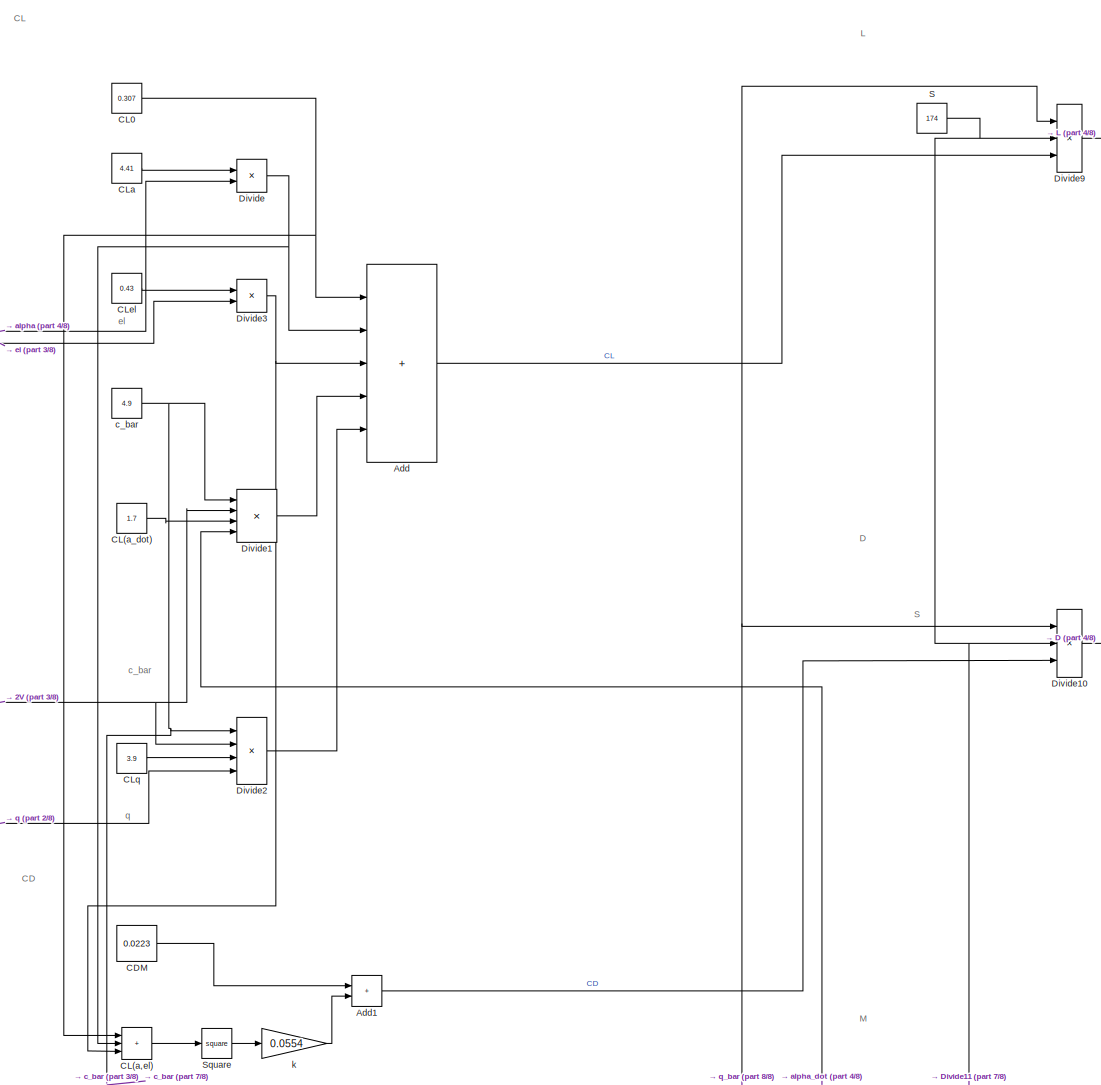
[diagram: root canvas - part 1/8, top left region]
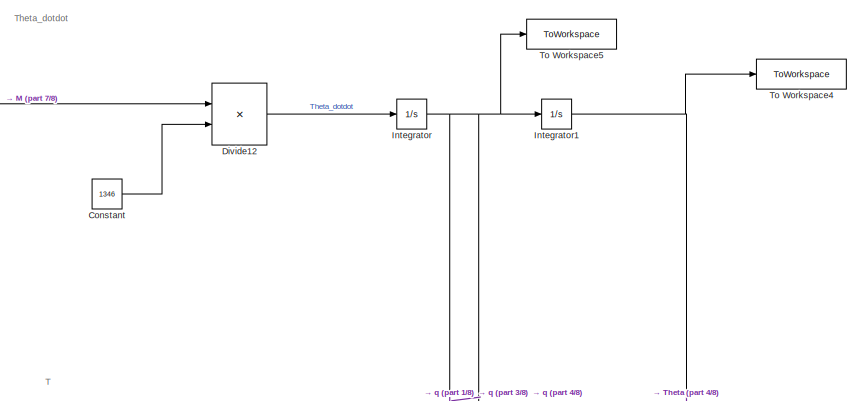
[diagram: root canvas - part 2/8, top right region]
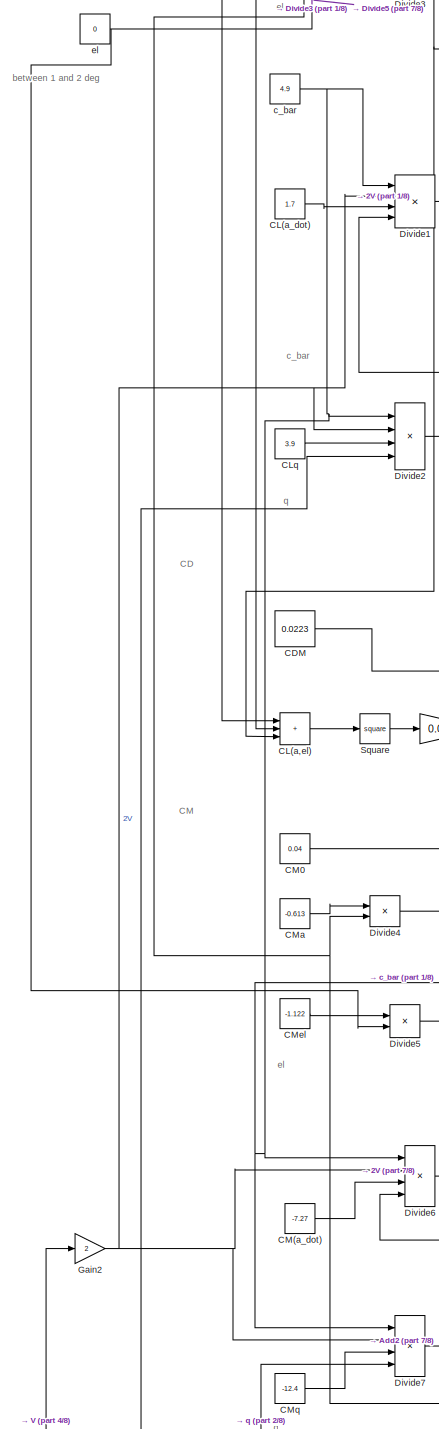
[diagram: root canvas - part 3/8, middle left region]
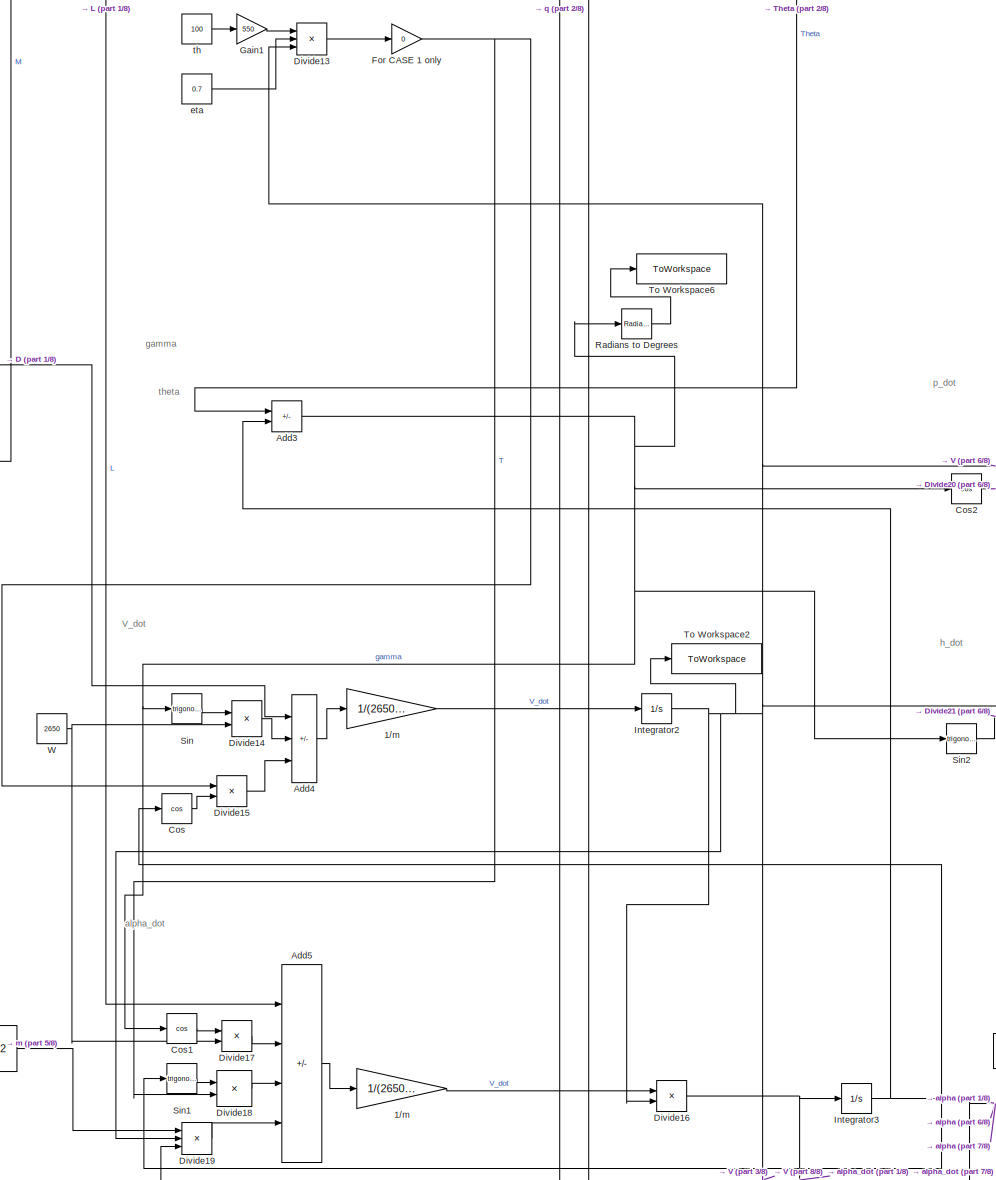
[diagram: root canvas - part 4/8, middle right region]
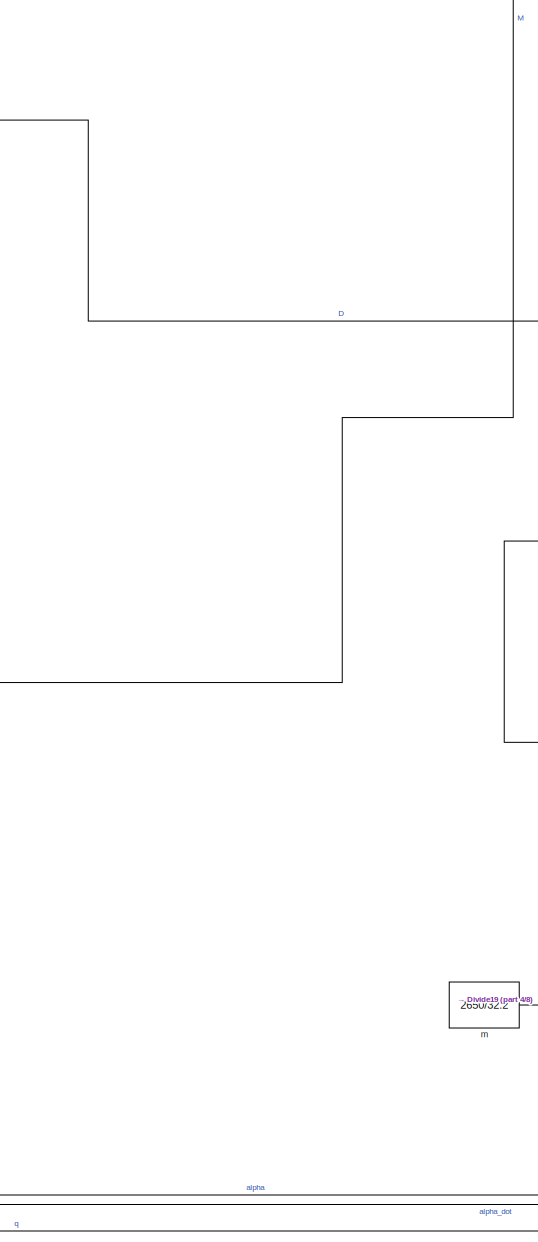
[diagram: root canvas - part 5/8, central region]
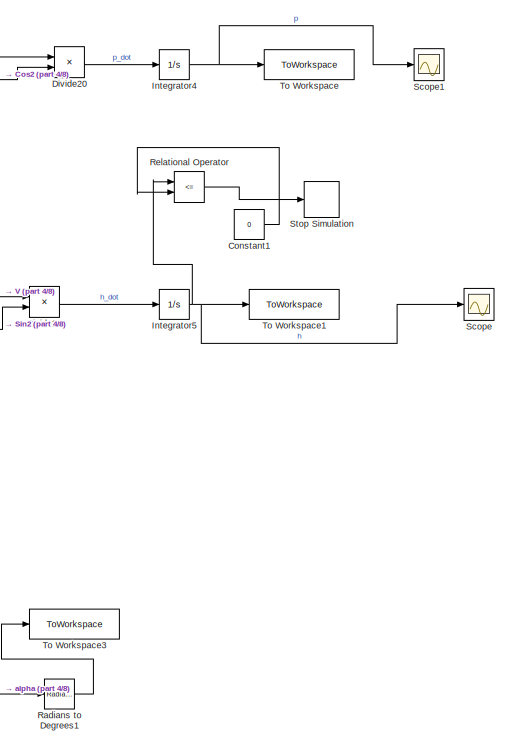
[diagram: root canvas - part 6/8, middle right region]
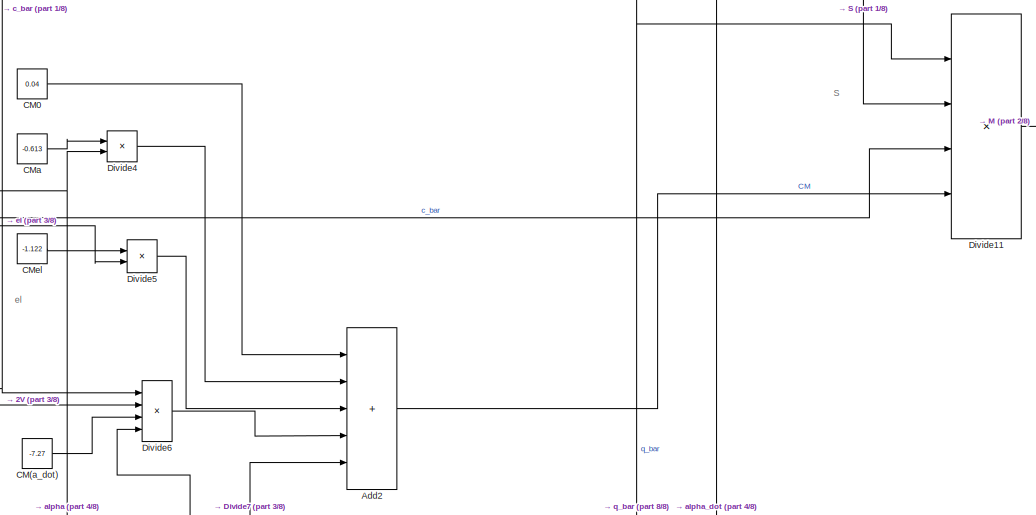
[diagram: root canvas - part 7/8, middle left region]
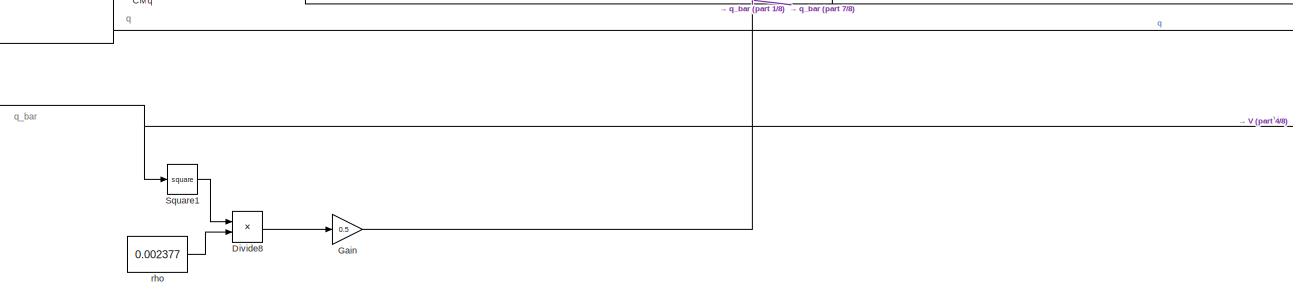
[diagram: root canvas - part 8/8, bottom left region]
MODEL slx_52c1baaa31ce
KIND model
CONFIG AbsTol = auto
CONFIG EnableMultiTasking = off
CONFIG FixedStep = auto
CONFIG MaxStep = auto
CONFIG MinStep = auto
CONFIG RelTol = 1e-3
CONFIG SampleTimeConstraint = Unconstrained
CONFIG Solver = FixedStepAuto
CONFIG SolverName = FixedStepAuto
CONFIG StartTime = 0.0
CONFIG StopTime = 500
BLOCK [Gain] 1//m
  Gain = 1/(2650/32.2)
BLOCK [Gain] 1//m 
  Gain = 1/(2650/32.2)
BLOCK [Sum] Add
  IconShape = rectangular
  Inputs = +++++
  Ports = [5, 1]
BLOCK [Sum] Add1
  IconShape = rectangular
  Ports = [2, 1]
BLOCK [Sum] Add2
  IconShape = rectangular
  Inputs = +++++
  Ports = [5, 1]
BLOCK [Sum] Add3
  IconShape = rectangular
  Inputs = +-
  Ports = [2, 1]
BLOCK [Sum] Add4
  IconShape = rectangular
  Inputs = --+
  Ports = [3, 1]
BLOCK [Sum] Add5
  IconShape = rectangular
  Inputs = -+-+
  Ports = [4, 1]
BLOCK [Constant] CDM
  Value = 0.0223
BLOCK [Sum] CL(a,el)
  IconShape = rectangular
  Inputs = +++
  Ports = [3, 1]
BLOCK [Constant] CL(a_dot)
  Value = 1.7
BLOCK [Constant] CL0
  Value = 0.307
BLOCK [Constant] CLa
  Value = 4.41
BLOCK [Constant] CLel
  Value = 0.43
BLOCK [Constant] CLq
  Value = 3.9
BLOCK [Constant] CM(a_dot)
  Value = -7.27
BLOCK [Constant] CM0
  Value = 0.04
BLOCK [Constant] CMa
  Value = -0.613
BLOCK [Constant] CMel
  Value = -1.122
BLOCK [Constant] CMq
  Value = -12.4
BLOCK [Constant] Constant
  Value = 1346
BLOCK [Constant] Constant1
  Value = 0
BLOCK [Trigonometry] Cos
  Operator = cos
  Ports = [1, 1]
BLOCK [Trigonometry] Cos1
  Operator = cos
  Ports = [1, 1]
BLOCK [Trigonometry] Cos2
  Operator = cos
  Ports = [1, 1]
BLOCK [Product] Divide
  Inputs = **
  Ports = [2, 1]
BLOCK [Product] Divide1
  Inputs = */**
  Ports = [4, 1]
BLOCK [Product] Divide10
  Inputs = ***
  Ports = [3, 1]
BLOCK [Product] Divide11
  Inputs = ****
  Ports = [4, 1]
BLOCK [Product] Divide12
  Inputs = */
  Ports = [2, 1]
BLOCK [Product] Divide13
  Inputs = **/
  Ports = [3, 1]
BLOCK [Product] Divide14
  Inputs = **
  Ports = [2, 1]
BLOCK [Product] Divide15
  Inputs = **
  Ports = [2, 1]
BLOCK [Product] Divide16
  Inputs = */
  Ports = [2, 1]
BLOCK [Product] Divide17
  Inputs = **
  Ports = [2, 1]
BLOCK [Product] Divide18
  Inputs = **
  Ports = [2, 1]
BLOCK [Product] Divide19
  Inputs = ***
  Ports = [3, 1]
BLOCK [Product] Divide2
  Inputs = */**
  Ports = [4, 1]
BLOCK [Product] Divide20
  Inputs = **
  Ports = [2, 1]
BLOCK [Product] Divide21
  Inputs = **
  Ports = [2, 1]
BLOCK [Product] Divide3
  Inputs = **
  Ports = [2, 1]
BLOCK [Product] Divide4
  Inputs = **
  Ports = [2, 1]
BLOCK [Product] Divide5
  Inputs = **
  Ports = [2, 1]
BLOCK [Product] Divide6
  Inputs = */**
  Ports = [4, 1]
BLOCK [Product] Divide7
  Inputs = */**
  Ports = [4, 1]
BLOCK [Product] Divide8
  Inputs = **
  Ports = [2, 1]
BLOCK [Product] Divide9
  Inputs = ***
  Ports = [3, 1]
BLOCK [Gain] For CASE 1 only
  Gain = 0
BLOCK [Gain] Gain
  Gain = 0.5
BLOCK [Gain] Gain1
  Gain = 550
BLOCK [Gain] Gain2
  Gain = 2
BLOCK [Integrator] Integrator
  Ports = [1, 1]
BLOCK [Integrator] Integrator1
  Ports = [1, 1]
BLOCK [Integrator] Integrator2
  InitialCondition = 100*5280/3600
  Ports = [1, 1]
BLOCK [Integrator] Integrator3
  Ports = [1, 1]
BLOCK [Integrator] Integrator4
  Ports = [1, 1]
BLOCK [Integrator] Integrator5
  InitialCondition = 2000
  Ports = [1, 1]
BLOCK [Reference] Radians to Degrees  REF=simulink_extras/Transformations/Radians
to Degrees
  Ports = [1, 1]
  SourceBlock = simulink_extras/Transformations/Radians\nto Degrees
  SourceProductBaseCode = SL
  SourceType = RadiansToDegrees
BLOCK [Reference] Radians to Degrees1  REF=simulink_extras/Transformations/Radians
to Degrees
  Ports = [1, 1]
  SourceBlock = simulink_extras/Transformations/Radians\nto Degrees
  SourceProductBaseCode = SL
  SourceType = RadiansToDegrees
BLOCK [RelationalOperator] Relational Operator
  InputSameDT = off
  Operator = <=
  OutDataTypeStr = boolean
  Ports = [2, 1]
  RndMeth = Simplest
BLOCK [Constant] S
  Value = 174
BLOCK [Scope] Scope
  Floating = off
  NumInputPorts = 1
  Ports = [1]
  ScopeSpecificationString = Simulink.scopes.TimeScopeBlockCfg('CurrentConfiguration', extmgr.ConfigurationSet(extmgr.Configuration('Core','General UI',true),extmgr.Configuration('Core','Source UI',true),extmgr.Configuration('Sources','WiredSimulink',true),extmgr.Configuration('Visuals','Time Domain',true,'SerializedDisplays',{struct('MinYLimReal','-250.06726','MaxYLimReal','2250.00747','YLabelReal','','MinYLimMag',' 0.00000'...<+1339ch>
BLOCK [Scope] Scope1
  Floating = off
  NumInputPorts = 1
  Ports = [1]
  ScopeSpecificationString = Simulink.scopes.TimeScopeBlockCfg('CurrentConfiguration', extmgr.ConfigurationSet(extmgr.Configuration('Core','General UI',true),extmgr.Configuration('Core','Source UI',true),extmgr.Configuration('Sources','WiredSimulink',true,'DataLoggingVariableName','ScopeData1'),extmgr.Configuration('Visuals','Time Domain',true,'SerializedDisplays',{struct('MinYLimReal','-3553.14663','MaxYLimReal','31978.31969...<+1386ch>
BLOCK [Trigonometry] Sin
  Ports = [1, 1]
BLOCK [Trigonometry] Sin1
  Ports = [1, 1]
BLOCK [Trigonometry] Sin2
  Ports = [1, 1]
BLOCK [Math] Square
  Operator = square
  Ports = [1, 1]
BLOCK [Math] Square1
  Operator = square
  Ports = [1, 1]
BLOCK [Stop] Stop Simulation
BLOCK [ToWorkspace] To Workspace
  FixptAsFi = on
  MaxDataPoints = inf
  Ports = [1]
  SampleTime = .01
  Save2DSignal = 2-D array (concatenate along first dimension)
  VariableName = p
BLOCK [ToWorkspace] To Workspace1
  FixptAsFi = on
  MaxDataPoints = inf
  Ports = [1]
  SampleTime = .01
  Save2DSignal = 2-D array (concatenate along first dimension)
  VariableName = h
BLOCK [ToWorkspace] To Workspace2
  FixptAsFi = on
  MaxDataPoints = inf
  Ports = [1]
  SampleTime = .01
  Save2DSignal = 2-D array (concatenate along first dimension)
  VariableName = V
BLOCK [ToWorkspace] To Workspace3
  FixptAsFi = on
  MaxDataPoints = inf
  Ports = [1]
  SampleTime = .01
  Save2DSignal = 2-D array (concatenate along first dimension)
  VariableName = alpha
BLOCK [ToWorkspace] To Workspace4
  FixptAsFi = on
  MaxDataPoints = inf
  Ports = [1]
  SampleTime = .01
  Save2DSignal = 2-D array (concatenate along first dimension)
  VariableName = theta
BLOCK [ToWorkspace] To Workspace5
  FixptAsFi = on
  MaxDataPoints = inf
  Ports = [1]
  SampleTime = .01
  Save2DSignal = 2-D array (concatenate along first dimension)
  VariableName = q
BLOCK [ToWorkspace] To Workspace6
  FixptAsFi = on
  MaxDataPoints = inf
  Ports = [1]
  SampleTime = .01
  Save2DSignal = 2-D array (concatenate along first dimension)
  VariableName = gamma
BLOCK [Constant] W
  Value = 2650
BLOCK [Constant] c_bar
  Value = 4.9
BLOCK [Constant] el
  Value = 0
BLOCK [Constant] eta
  Value = 0.7
BLOCK [Gain] k
  Gain = 0.0554
BLOCK [Constant] m
  Value = 2650/32.2
BLOCK [Constant] rho
  Value = 0.002377
BLOCK [Constant] th
  Value = 100
ANNOTATION (root): CD
ANNOTATION (root): CL
ANNOTATION (root): CM
ANNOTATION (root): D
ANNOTATION (root): L
ANNOTATION (root): M
ANNOTATION (root): T
ANNOTATION (root): Theta_dotdot
ANNOTATION (root): V_dot
ANNOTATION (root): alpha_dot
ANNOTATION (root): gamma
ANNOTATION (root): h_dot
ANNOTATION (root): p_dot
ANNOTATION (root): q_bar
ANNOTATION (root): S
ANNOTATION (root): between 1 and 2 deg
ANNOTATION (root): c_bar
ANNOTATION (root): el
ANNOTATION (root): q
ANNOTATION (root): theta
LINE 1//m :1 -> Divide16:1
LINE 1//m:1 -> Integrator2:1
LINE Add1:1 -> Divide10:3
LINE Add2:1 -> Divide11:4
NET Add3:1 -> Cos1:1, Cos2:1, Radians to Degrees:1, Sin2:1, Sin:1
LINE Add4:1 -> 1//m:1
LINE Add5:1 -> 1//m :1
LINE Add:1 -> Divide9:3
LINE CDM:1 -> Add1:1
LINE CL(a,el):1 -> Square:1
LINE CL(a_dot):1 -> Divide1:3
NET CL0:1 -> Add:1, CL(a,el):1
LINE CLa:1 -> Divide:1
LINE CLel:1 -> Divide3:1
LINE CLq:1 -> Divide2:3
LINE CM(a_dot):1 -> Divide6:3
LINE CM0:1 -> Add2:1
LINE CMa:1 -> Divide4:1
LINE CMel:1 -> Divide5:1
LINE CMq:1 -> Divide7:3
LINE Constant1:1 -> Relational Operator:2
LINE Constant:1 -> Divide12:2
LINE Cos1:1 -> Divide17:1
LINE Cos2:1 -> Divide20:2
LINE Cos:1 -> Divide15:2
LINE Divide10:1 -> Add4:1
LINE Divide11:1 -> Divide12:1
LINE Divide12:1 -> Integrator:1
LINE Divide13:1 -> For CASE 1 only:1
LINE Divide14:1 -> Add4:2
LINE Divide15:1 -> Add4:3
NET Divide16:1 -> Divide1:4, Divide6:4, Integrator3:1
LINE Divide17:1 -> Add5:2
LINE Divide18:1 -> Add5:3
LINE Divide19:1 -> Add5:4
LINE Divide1:1 -> Add:4
LINE Divide20:1 -> Integrator4:1
LINE Divide21:1 -> Integrator5:1
LINE Divide2:1 -> Add:5
NET Divide3:1 -> Add:3, CL(a,el):3
LINE Divide4:1 -> Add2:2
LINE Divide5:1 -> Add2:3
LINE Divide6:1 -> Add2:4
LINE Divide7:1 -> Add2:5
LINE Divide8:1 -> Gain:1
LINE Divide9:1 -> Add5:1
NET Divide:1 -> Add:2, CL(a,el):2
NET For CASE 1 only:1 -> Divide15:1, Divide18:2
LINE Gain1:1 -> Divide13:1
NET Gain2:1 -> Divide1:2, Divide2:2, Divide6:2, Divide7:2
NET Gain:1 -> Divide10:1, Divide11:1, Divide9:1
NET Integrator1:1 -> Add3:1, To Workspace4:1
NET Integrator2:1 -> Divide13:3, Divide16:2, Divide19:2, Divide20:1, Divide21:1, Gain2:1, Square1:1, To Workspace2:1
NET Integrator3:1 -> Add3:2, Cos:1, Divide4:2, Divide:2, Radians to Degrees1:1, Sin1:1
NET Integrator4:1 -> Scope1:1, To Workspace:1
NET Integrator5:1 -> Relational Operator:1, Scope:1, To Workspace1:1
NET Integrator:1 -> Divide19:3, Divide2:4, Divide7:4, Integrator1:1, To Workspace5:1
LINE Radians to Degrees1:1 -> To Workspace3:1
LINE Radians to Degrees:1 -> To Workspace6:1
LINE Relational Operator:1 -> Stop Simulation:1
NET S:1 -> Divide10:2, Divide11:2, Divide9:2
LINE Sin1:1 -> Divide18:1
LINE Sin2:1 -> Divide21:2
LINE Sin:1 -> Divide14:1
LINE Square1:1 -> Divide8:1
LINE Square:1 -> k:1
NET W:1 -> Divide14:2, Divide17:2
NET c_bar:1 -> Divide11:3, Divide1:1, Divide2:1, Divide6:1, Divide7:1
NET el:1 -> Divide3:2, Divide5:2
LINE eta:1 -> Divide13:2
LINE k:1 -> Add1:2
LINE m:1 -> Divide19:1
LINE rho:1 -> Divide8:2
LINE th:1 -> Gain1:1
note: NET lines group one-source signal fan-out (src -> all destinations, sorted); 1:1 wires keep LINE
